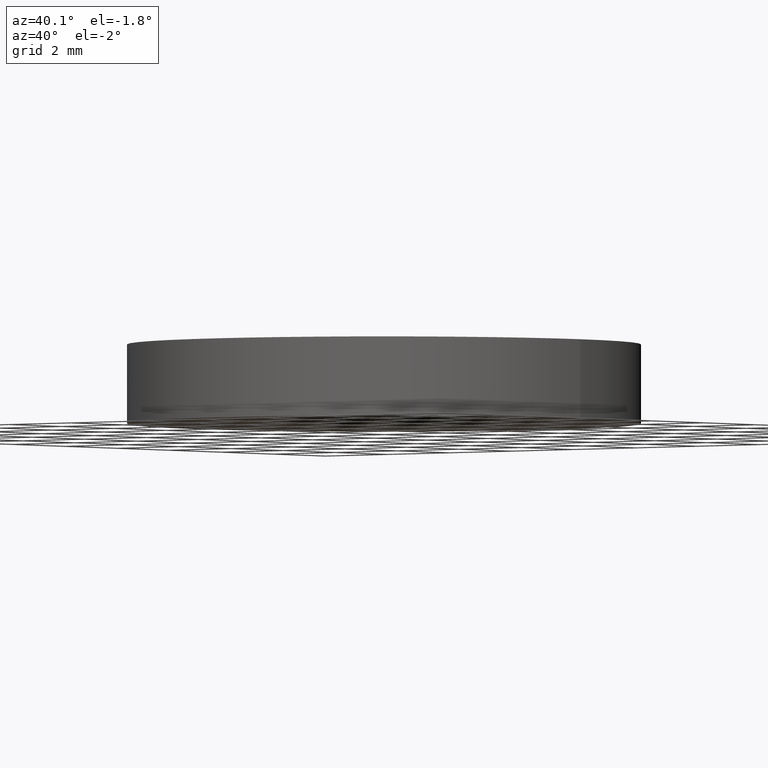
[diagram: clean part render]
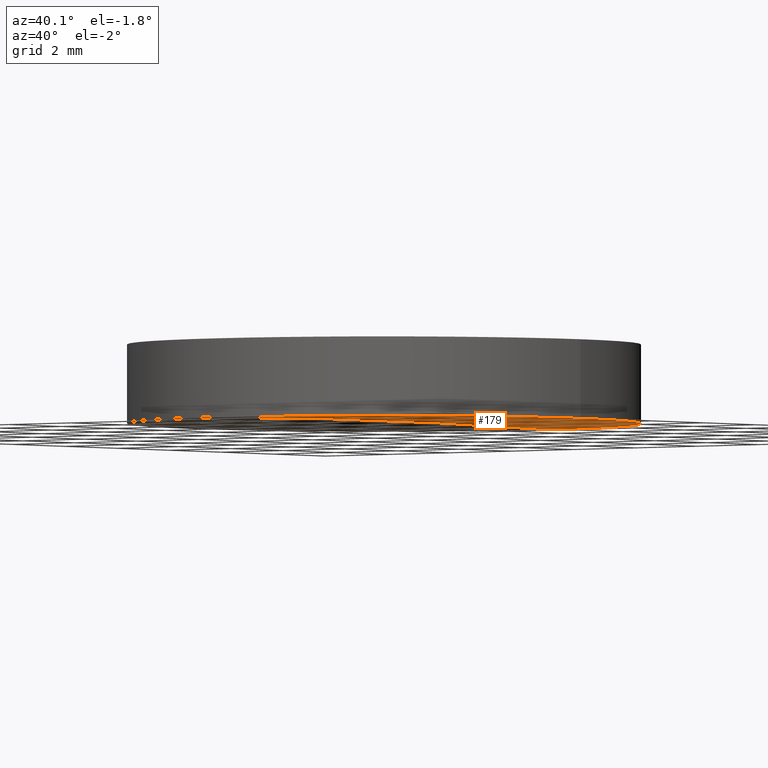
[diagram: same view with one face highlighted and labeled with its STEP entity id]
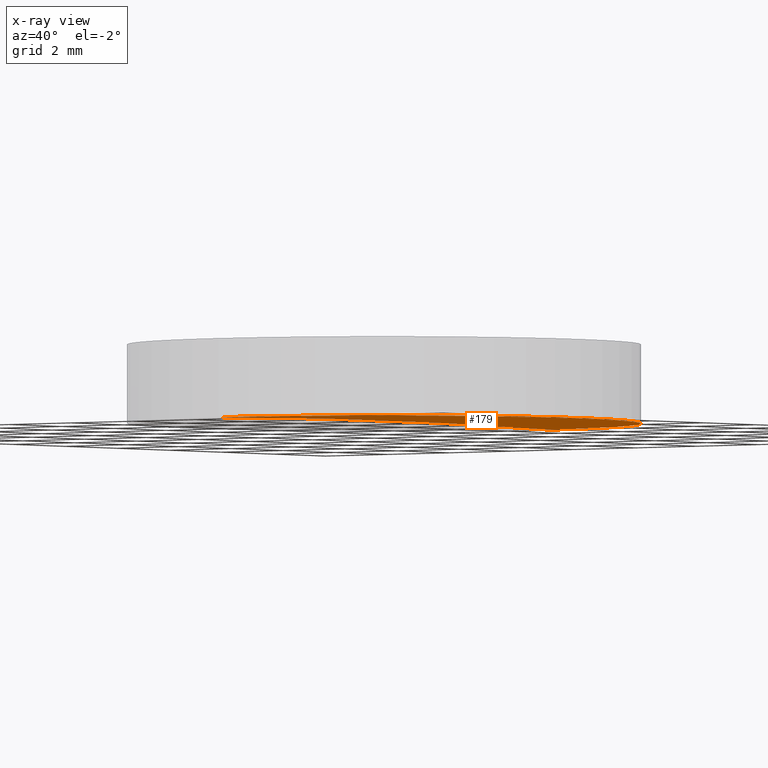
[diagram: x-ray of the same camera — body ghosted, the highlighted face saturated]
A machine part, auxiliary view. The second image highlights one B-rep face of the part: STEP entity #179.
The next image is the same camera in x-ray: the body ghosted, the highlighted face saturated — about 0% of this face is hidden behind the body in this view.
In plain terms, the highlighted face is a freeform B-spline surface patch.
Its self-contained STEP definition (entity closure, byte-faithful):
#1 = DIRECTION ( 'NONE',  ( 1.000000000000000000, 0.0000000000000000000, 0.0000000000000000000 ) ) ;
#5 = CARTESIAN_POINT ( 'NONE',  ( 6.349999999999999600, 1.221245327087670000E-015, -0.07764445256259830400 ) ) ;
#6 = CARTESIAN_POINT ( 'NONE',  ( 2.129850009775330100, -2.142498861219060300, 0.02651174670438362400 ) ) ;
#13 = AXIS2_PLACEMENT_3D ( 'NONE', #114, #276, #89 ) ;
#17 = DIRECTION ( 'NONE',  ( 0.0000000000000000000, 0.0000000000000000000, 1.000000000000000000 ) ) ;
#23 = ORIENTED_EDGE ( 'NONE', *, *, #277, .F. ) ;
#25 = CARTESIAN_POINT ( 'NONE',  ( -9.425762500011748200E-014, -2.142498861219060300, 0.02651174670438355100 ) ) ;
#34 = FACE_OUTER_BOUND ( 'NONE', #284, .T. ) ;
#44 = CARTESIAN_POINT ( 'NONE',  ( 6.386136330860566100, -6.426184536089222900, -0.1580738780884536900 ) ) ;
#54 = ORIENTED_EDGE ( 'NONE', *, *, #109, .F. ) ;
#56 = CARTESIAN_POINT ( 'NONE',  ( -9.235371109198769400E-014, 6.349999999999808700, -0.07764445256259233700 ) ) ;
#59 = AXIS2_PLACEMENT_3D ( 'NONE', #198, #133, #218 ) ;
#63 = CARTESIAN_POINT ( 'NONE',  ( 4.257799989028111300, 6.426184536089195400, -0.1057052830026524400 ) ) ;
#69 = CARTESIAN_POINT ( 'NONE',  ( 6.388744471906244700, 2.142498861219033700, -0.05207520917163602900 ) ) ;
#82 = CIRCLE ( 'NONE', #59, 259.6999999999999900 ) ;
#83 =( BOUNDED_SURFACE ( )  B_SPLINE_SURFACE ( 3, 3, ( 
 ( #231, #254, #63, #142 ),
 ( #160, #164, #167, #69 ),
 ( #25, #6, #186, #166 ),
 ( #124, #189, #236, #44 ) ),
 .UNSPECIFIED., .F., .F., .F. ) 
 B_SPLINE_SURFACE_WITH_KNOTS ( ( 4, 4 ),
 ( 4, 4 ),
 ( 0.0000000000000000000, 1.000000000000000000 ),
 ( 0.0000000000000000000, 1.000000000000000000 ),
 .UNSPECIFIED. ) 
 GEOMETRIC_REPRESENTATION_ITEM ( )  RATIONAL_B_SPLINE_SURFACE ( (
 ( 1.000000000000000000, 0.9999495687932881100, 0.9999495687932881100, 1.000000000000000000),
 ( 0.9997958695814366200, 0.9997454486692680700, 0.9997454486692680700, 0.9997958695814366200),
 ( 0.9997958695814366200, 0.9997454486692680700, 0.9997454486692680700, 0.9997958695814366200),
 ( 1.000000000000000000, 0.9999495687932881100, 0.9999495687932881100, 1.000000000000000000) ) ) 
 REPRESENTATION_ITEM ( '' )  SURFACE ( )  );
#89 = DIRECTION ( 'NONE',  ( 1.000000000000000000, 0.0000000000000000000, 0.0000000000000000000 ) ) ;
#94 = VERTEX_POINT ( 'NONE', #158 ) ;
#103 = VERTEX_POINT ( 'NONE', #56 ) ;
#109 = EDGE_CURVE ( 'NONE', #94, #219, #170, .T. ) ;
#114 = CARTESIAN_POINT ( 'NONE',  ( 2.498001805406600200E-016, 1.221245327087670000E-015, -0.07764445256259830400 ) ) ;
#124 = CARTESIAN_POINT ( 'NONE',  ( -9.521277732938965700E-014, -6.426184536089221100, -0.07951900455133165100 ) ) ;
#126 = AXIS2_PLACEMENT_3D ( 'NONE', #205, #17, #1 ) ;
#133 = DIRECTION ( 'NONE',  ( 1.000000000000000000, -2.237857218932010100E-016, 3.277692368538209700E-017 ) ) ;
#136 = EDGE_CURVE ( 'NONE', #219, #103, #292, .T. ) ;
#142 = CARTESIAN_POINT ( 'NONE',  ( 6.386136330860569600, 6.426184536089194500, -0.1580738780884536900 ) ) ;
#158 = CARTESIAN_POINT ( 'NONE',  ( -9.519578976003126600E-014, -6.349999999999807800, -0.07764445256259233700 ) ) ;
#160 = CARTESIAN_POINT ( 'NONE',  ( -9.329870369149096200E-014, 2.142498861219035000, 0.02651174670438313100 ) ) ;
#164 = CARTESIAN_POINT ( 'NONE',  ( 2.129850009775331000, 2.142498861219034100, 0.02651174670438319700 ) ) ;
#166 = CARTESIAN_POINT ( 'NONE',  ( 6.388744471906243800, -2.142498861219061600, -0.05207520917163560600 ) ) ;
#167 = CARTESIAN_POINT ( 'NONE',  ( 4.259538903191592700, 2.142498861219033700, 0.0003147736007524107800 ) ) ;
#170 = CIRCLE ( 'NONE', #13, 6.349999999999999600 ) ;
#179 = ADVANCED_FACE ( 'NONE', ( #34 ), #83, .F. ) ;
#186 = CARTESIAN_POINT ( 'NONE',  ( 4.259538903191590900, -2.142498861219060700, 0.0003147736007528309100 ) ) ;
#189 = CARTESIAN_POINT ( 'NONE',  ( 2.128980519806516400, -6.426184536089222000, -0.07951900455133156800 ) ) ;
#198 = CARTESIAN_POINT ( 'NONE',  ( -8.526512829121199700E-014, 0.0000000000000000000, -259.6999999999999900 ) ) ;
#205 = CARTESIAN_POINT ( 'NONE',  ( 2.498001805406600200E-016, 1.221245327087670000E-015, -0.07764445256259830400 ) ) ;
#218 = DIRECTION ( 'NONE',  ( 2.237857218932010100E-016, 1.000000000000000000, 0.0000000000000000000 ) ) ;
#219 = VERTEX_POINT ( 'NONE', #5 ) ;
#231 = CARTESIAN_POINT ( 'NONE',  ( -9.233660063853435400E-014, 6.426184536089196300, -0.07951900455133165100 ) ) ;
#236 = CARTESIAN_POINT ( 'NONE',  ( 4.257799989028107700, -6.426184536089222000, -0.1057052830026524600 ) ) ;
#254 = CARTESIAN_POINT ( 'NONE',  ( 2.128980519806519500, 6.426184536089195400, -0.07951900455133156800 ) ) ;
#276 = DIRECTION ( 'NONE',  ( 0.0000000000000000000, 0.0000000000000000000, 1.000000000000000000 ) ) ;
#277 = EDGE_CURVE ( 'NONE', #103, #94, #82, .T. ) ;
#284 = EDGE_LOOP ( 'NONE', ( #23, #295, #54 ) ) ;
#292 = CIRCLE ( 'NONE', #126, 6.349999999999999600 ) ;
#295 = ORIENTED_EDGE ( 'NONE', *, *, #136, .F. ) ;